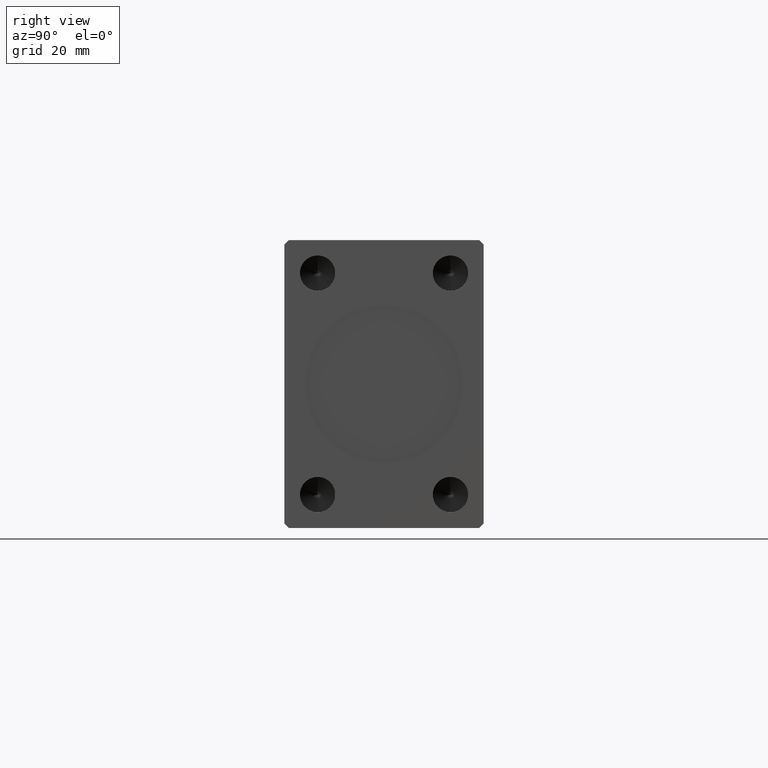
[diagram: clean part render]
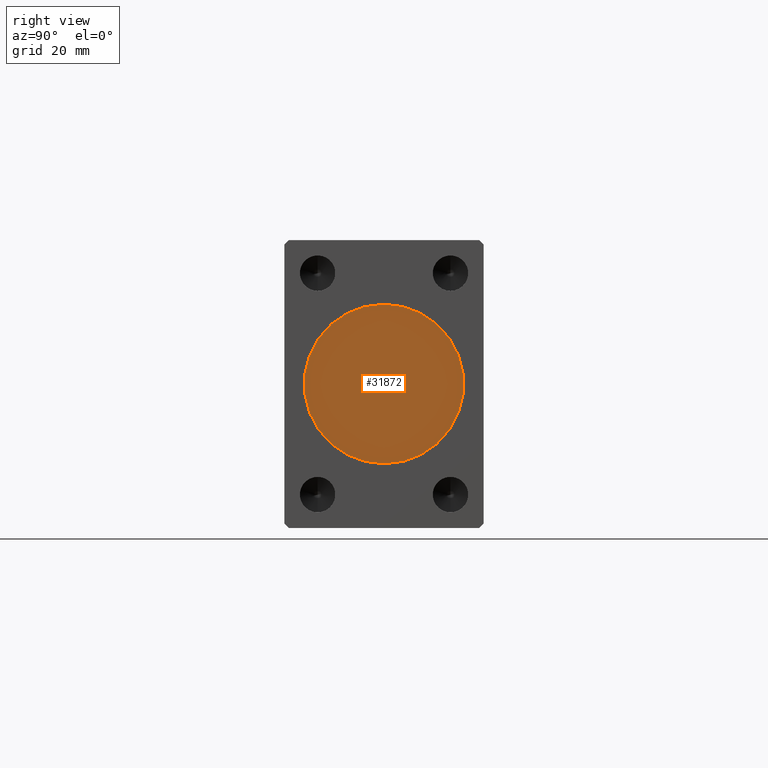
[diagram: same view with one face highlighted and labeled with its STEP entity id]
A machine part, right view. The second image highlights one B-rep face of the part: STEP entity #31872.
In plain terms, the highlighted planar face has unit normal (1, 0, 0).
Its self-contained STEP definition (entity closure, byte-faithful):
#213 = EDGE_CURVE ( 'NONE', #7954, #5518, #11831, .T. ) ;
#2839 = DIRECTION ( 'NONE',  ( 1.000000000000000000, 0.000000000000000000, 0.000000000000000000 ) ) ;
#3496 = DIRECTION ( 'NONE',  ( 0.000000000000000000, 0.000000000000000000, -1.000000000000000000 ) ) ;
#5389 = AXIS2_PLACEMENT_3D ( 'NONE', #37255, #37691, #6677 ) ;
#5518 = VERTEX_POINT ( 'NONE', #39552 ) ;
#6677 = DIRECTION ( 'NONE',  ( 0.000000000000000000, 0.000000000000000000, -1.000000000000000000 ) ) ;
#7679 = FACE_OUTER_BOUND ( 'NONE', #8980, .T. ) ;
#7954 = VERTEX_POINT ( 'NONE', #36173 ) ;
#8980 = EDGE_LOOP ( 'NONE', ( #34379, #10274 ) ) ;
#10274 = ORIENTED_EDGE ( 'NONE', *, *, #32834, .T. ) ;
#11831 = CIRCLE ( 'NONE', #5389, 18.00000000000000000 ) ;
#24400 = DIRECTION ( 'NONE',  ( 1.000000000000000000, 0.000000000000000000, 0.000000000000000000 ) ) ;
#28916 = AXIS2_PLACEMENT_3D ( 'NONE', #41821, #24400, #42280 ) ;
#31872 = ADVANCED_FACE ( 'NONE', ( #7679 ), #38027, .T. ) ;
#32834 = EDGE_CURVE ( 'NONE', #5518, #7954, #34193, .T. ) ;
#33191 = CARTESIAN_POINT ( 'NONE',  ( 137.8000000000000114, 0.000000000000000000, 0.000000000000000000 ) ) ;
#34193 = CIRCLE ( 'NONE', #39912, 18.00000000000000000 ) ;
#34379 = ORIENTED_EDGE ( 'NONE', *, *, #213, .T. ) ;
#36173 = CARTESIAN_POINT ( 'NONE',  ( 137.8000000000000114, 0.000000000000000000, -18.00000000000000000 ) ) ;
#37255 = CARTESIAN_POINT ( 'NONE',  ( 137.8000000000000114, 0.000000000000000000, 0.000000000000000000 ) ) ;
#37691 = DIRECTION ( 'NONE',  ( 1.000000000000000000, 0.000000000000000000, 0.000000000000000000 ) ) ;
#38027 = PLANE ( 'NONE',  #28916 ) ;
#39552 = CARTESIAN_POINT ( 'NONE',  ( 137.8000000000000114, 2.204364238465235428E-15, 18.00000000000000000 ) ) ;
#39912 = AXIS2_PLACEMENT_3D ( 'NONE', #33191, #2839, #3496 ) ;
#41821 = CARTESIAN_POINT ( 'NONE',  ( 137.8000000000000114, 0.000000000000000000, 0.000000000000000000 ) ) ;
#42280 = DIRECTION ( 'NONE',  ( 0.000000000000000000, 0.000000000000000000, -1.000000000000000000 ) ) ;